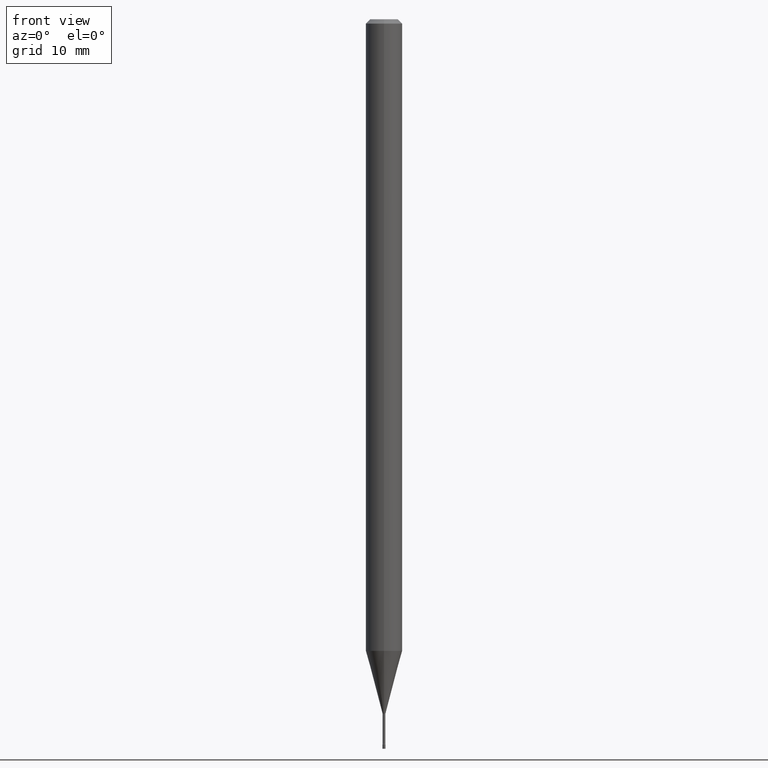
[diagram: clean part render]
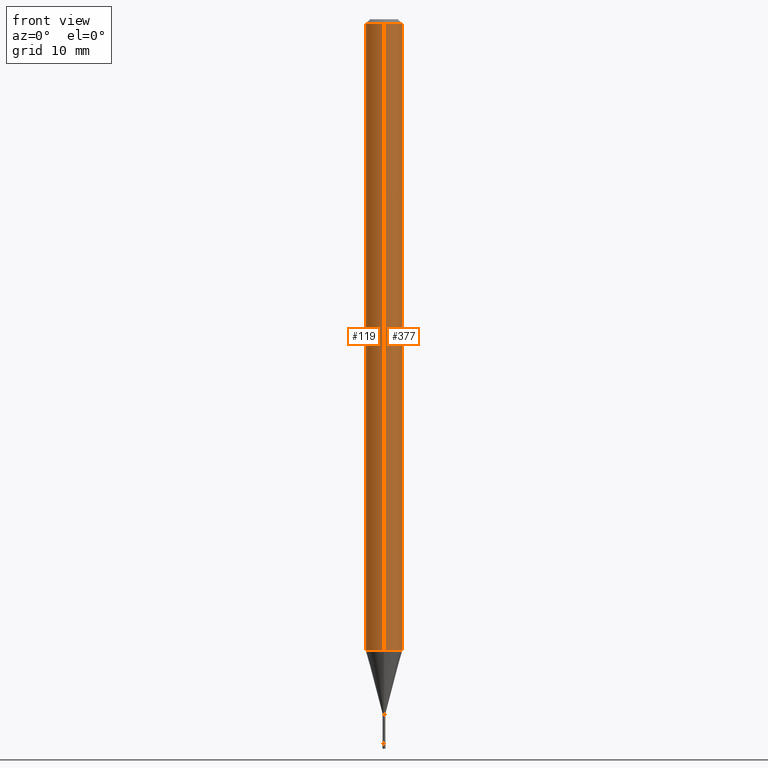
[diagram: same view with one multi-face feature highlighted, each face labeled with its STEP entity id]
A machine part, front view. The highlighted faces form ONE feature: a constant-radius fillet chain: 2 tangent blend faces with common blend radius 1.5875 mm. The faces share edges in the B-rep.
Their STEP definitions:
[1] entity #377 (Cylinder):
#6 = DIRECTION ( 'NONE',  ( -6.982962677686265922E-15, -1.000000000000000000, 3.483106191921935554E-15 ) ) ;
#29 = ORIENTED_EDGE ( 'NONE', *, *, #164, .F. ) ;
#54 = CIRCLE ( 'NONE', #66, 0.06250000000000000000 ) ;
#59 = DIRECTION ( 'NONE',  ( -2.444331714462359119E-29, 3.493109718909404263E-15, 1.000000000000000000 ) ) ;
#66 = AXIS2_PLACEMENT_3D ( 'NONE', #439, #162, #6 ) ;
#72 = VERTEX_POINT ( 'NONE', #519 ) ;
#97 = AXIS2_PLACEMENT_3D ( 'NONE', #391, #480, #430 ) ;
#103 = CIRCLE ( 'NONE', #97, 0.06250000000000000000 ) ;
#105 = ORIENTED_EDGE ( 'NONE', *, *, #147, .T. ) ;
#110 = AXIS2_PLACEMENT_3D ( 'NONE', #307, #383, #341 ) ;
#113 = CARTESIAN_POINT ( 'NONE',  ( 4.440892098501153712E-16, 0.06249999999999242967, -2.164287463322519756 ) ) ;
#147 = EDGE_CURVE ( 'NONE', #456, #370, #242, .T. ) ;
#151 = VERTEX_POINT ( 'NONE', #289 ) ;
#162 = DIRECTION ( 'NONE',  ( -2.444331714462359119E-29, 3.493109718909404657E-15, 1.000000000000000000 ) ) ;
#164 = EDGE_CURVE ( 'NONE', #151, #370, #54, .T. ) ;
#199 = CARTESIAN_POINT ( 'NONE',  ( 4.440892098500625669E-16, 0.06250000000000000000, -2.183193574318377911E-16 ) ) ;
#224 = FACE_OUTER_BOUND ( 'NONE', #231, .T. ) ;
#231 = EDGE_LOOP ( 'NONE', ( #336, #105, #29, #365 ) ) ;
#242 = LINE ( 'NONE', #199, #493 ) ;
#264 = CARTESIAN_POINT ( 'NONE',  ( 4.440892098501159629E-16, 0.06249999999999995837, -0.01500000000000024751 ) ) ;
#280 = EDGE_CURVE ( 'NONE', #72, #151, #303, .T. ) ;
#289 = CARTESIAN_POINT ( 'NONE',  ( -4.364351673553912750E-16, -0.06250000000000005551, -0.01499999999999981209 ) ) ;
#303 = LINE ( 'NONE', #455, #489 ) ;
#307 = CARTESIAN_POINT ( 'NONE',  ( 0.000000000000000000, 0.000000000000000000, 0.000000000000000000 ) ) ;
#336 = ORIENTED_EDGE ( 'NONE', *, *, #416, .T. ) ;
#337 = CYLINDRICAL_SURFACE ( 'NONE', #110, 0.06250000000000000000 ) ;
#341 = DIRECTION ( 'NONE',  ( -6.982962677686265922E-15, -1.000000000000000000, 3.493109718909404657E-15 ) ) ;
#365 = ORIENTED_EDGE ( 'NONE', *, *, #280, .F. ) ;
#370 = VERTEX_POINT ( 'NONE', #264 ) ;
#377 = ADVANCED_FACE ( 'NONE', ( #224 ), #337, .T. ) ;
#383 = DIRECTION ( 'NONE',  ( -2.444331714462359119E-29, 3.493109718909404657E-15, 1.000000000000000000 ) ) ;
#391 = CARTESIAN_POINT ( 'NONE',  ( 5.290236485812523479E-29, -7.560093572645674107E-15, -2.164287463322519312 ) ) ;
#416 = EDGE_CURVE ( 'NONE', #72, #456, #103, .T. ) ;
#430 = DIRECTION ( 'NONE',  ( -6.982962677686265922E-15, -1.000000000000000000, 4.370956789862821150E-15 ) ) ;
#439 = CARTESIAN_POINT ( 'NONE',  ( 3.666497571693545913E-31, -5.239664578364117759E-17, -0.01500000000000003067 ) ) ;
#455 = CARTESIAN_POINT ( 'NONE',  ( -4.364351673553916201E-16, -0.06250000000000000000, 2.183193574318377911E-16 ) ) ;
#456 = VERTEX_POINT ( 'NONE', #113 ) ;
#480 = DIRECTION ( 'NONE',  ( -2.444331714462359119E-29, 3.493109718909404657E-15, 1.000000000000000000 ) ) ;
#487 = DIRECTION ( 'NONE',  ( -2.444331714462359119E-29, 3.493109718909404263E-15, 1.000000000000000000 ) ) ;
#489 = VECTOR ( 'NONE', #59, 39.37007874015748143 ) ;
#493 = VECTOR ( 'NONE', #487, 39.37007874015748143 ) ;
#519 = CARTESIAN_POINT ( 'NONE',  ( -4.364351673553388650E-16, -0.06250000000000757727, -2.164287463322519312 ) ) ;
[2] entity #119 (Cylinder):
#7 = CYLINDRICAL_SURFACE ( 'NONE', #157, 0.06250000000000000000 ) ;
#33 = AXIS2_PLACEMENT_3D ( 'NONE', #404, #256, #212 ) ;
#34 = ORIENTED_EDGE ( 'NONE', *, *, #486, .T. ) ;
#42 = FACE_OUTER_BOUND ( 'NONE', #48, .T. ) ;
#48 = EDGE_LOOP ( 'NONE', ( #505, #34, #510, #69 ) ) ;
#59 = DIRECTION ( 'NONE',  ( -2.444331714462359119E-29, 3.493109718909404263E-15, 1.000000000000000000 ) ) ;
#69 = ORIENTED_EDGE ( 'NONE', *, *, #266, .F. ) ;
#72 = VERTEX_POINT ( 'NONE', #519 ) ;
#78 = DIRECTION ( 'NONE',  ( -6.982962677686265922E-15, -1.000000000000000000, 3.493109718909404657E-15 ) ) ;
#113 = CARTESIAN_POINT ( 'NONE',  ( 4.440892098501153712E-16, 0.06249999999999242967, -2.164287463322519756 ) ) ;
#119 = ADVANCED_FACE ( 'NONE', ( #42 ), #7, .T. ) ;
#147 = EDGE_CURVE ( 'NONE', #456, #370, #242, .T. ) ;
#151 = VERTEX_POINT ( 'NONE', #289 ) ;
#157 = AXIS2_PLACEMENT_3D ( 'NONE', #163, #200, #78 ) ;
#163 = CARTESIAN_POINT ( 'NONE',  ( 0.000000000000000000, 0.000000000000000000, 0.000000000000000000 ) ) ;
#199 = CARTESIAN_POINT ( 'NONE',  ( 4.440892098500625669E-16, 0.06250000000000000000, -2.183193574318377911E-16 ) ) ;
#200 = DIRECTION ( 'NONE',  ( -2.444331714462359119E-29, 3.493109718909404657E-15, 1.000000000000000000 ) ) ;
#209 = CIRCLE ( 'NONE', #33, 0.06250000000000000000 ) ;
#212 = DIRECTION ( 'NONE',  ( -6.982962677686265922E-15, -1.000000000000000000, 3.483106191921935554E-15 ) ) ;
#242 = LINE ( 'NONE', #199, #493 ) ;
#256 = DIRECTION ( 'NONE',  ( -2.444331714462359119E-29, 3.493109718909404657E-15, 1.000000000000000000 ) ) ;
#264 = CARTESIAN_POINT ( 'NONE',  ( 4.440892098501159629E-16, 0.06249999999999995837, -0.01500000000000024751 ) ) ;
#266 = EDGE_CURVE ( 'NONE', #370, #151, #209, .T. ) ;
#271 = CIRCLE ( 'NONE', #369, 0.06250000000000000000 ) ;
#280 = EDGE_CURVE ( 'NONE', #72, #151, #303, .T. ) ;
#289 = CARTESIAN_POINT ( 'NONE',  ( -4.364351673553912750E-16, -0.06250000000000005551, -0.01499999999999981209 ) ) ;
#303 = LINE ( 'NONE', #455, #489 ) ;
#369 = AXIS2_PLACEMENT_3D ( 'NONE', #423, #470, #385 ) ;
#370 = VERTEX_POINT ( 'NONE', #264 ) ;
#385 = DIRECTION ( 'NONE',  ( -6.982962677686265922E-15, -1.000000000000000000, 4.370956789862821150E-15 ) ) ;
#404 = CARTESIAN_POINT ( 'NONE',  ( 3.666497571693545913E-31, -5.239664578364117759E-17, -0.01500000000000003067 ) ) ;
#423 = CARTESIAN_POINT ( 'NONE',  ( 5.290236485812523479E-29, -7.560093572645674107E-15, -2.164287463322519312 ) ) ;
#455 = CARTESIAN_POINT ( 'NONE',  ( -4.364351673553916201E-16, -0.06250000000000000000, 2.183193574318377911E-16 ) ) ;
#456 = VERTEX_POINT ( 'NONE', #113 ) ;
#470 = DIRECTION ( 'NONE',  ( -2.444331714462359119E-29, 3.493109718909404657E-15, 1.000000000000000000 ) ) ;
#486 = EDGE_CURVE ( 'NONE', #456, #72, #271, .T. ) ;
#487 = DIRECTION ( 'NONE',  ( -2.444331714462359119E-29, 3.493109718909404263E-15, 1.000000000000000000 ) ) ;
#489 = VECTOR ( 'NONE', #59, 39.37007874015748143 ) ;
#493 = VECTOR ( 'NONE', #487, 39.37007874015748143 ) ;
#505 = ORIENTED_EDGE ( 'NONE', *, *, #147, .F. ) ;
#510 = ORIENTED_EDGE ( 'NONE', *, *, #280, .T. ) ;
#519 = CARTESIAN_POINT ( 'NONE',  ( -4.364351673553388650E-16, -0.06250000000000757727, -2.164287463322519312 ) ) ;